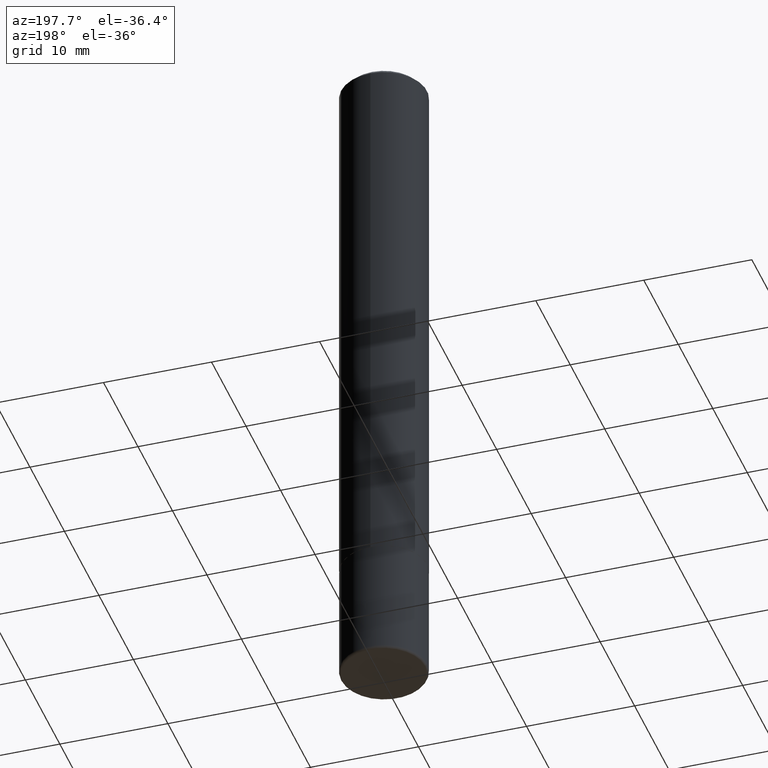
[diagram: clean part render]
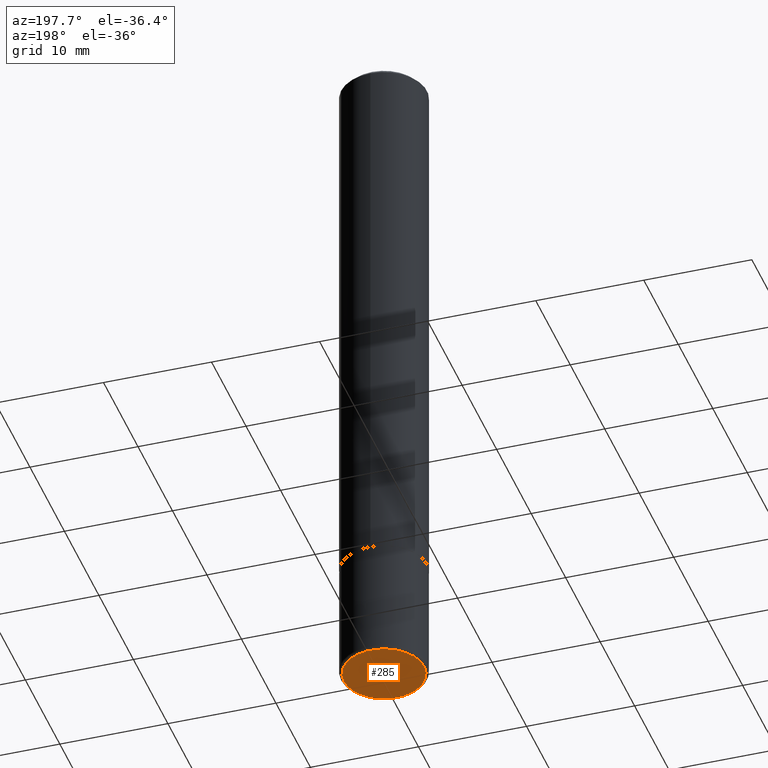
[diagram: same view with one face highlighted and labeled with its STEP entity id]
A machine part, auxiliary view. The second image highlights one B-rep face of the part: STEP entity #285.
In plain terms, the highlighted planar face has unit normal (0, -0, -1).
Its self-contained STEP definition (entity closure, byte-faithful):
#14 = CARTESIAN_POINT ( 'NONE',  ( 0.1462500000000000189, -9.749961638719478451E-15, -2.499999999999999556 ) ) ;
#32 = AXIS2_PLACEMENT_3D ( 'NONE', #390, #261, #386 ) ;
#57 = DIRECTION ( 'NONE',  ( 2.438088387897960049E-29, -3.491481338843145188E-15, -1.000000000000000000 ) ) ;
#72 = AXIS2_PLACEMENT_3D ( 'NONE', #198, #299, #96 ) ;
#89 = FACE_OUTER_BOUND ( 'NONE', #365, .T. ) ;
#96 = DIRECTION ( 'NONE',  ( 1.000000000000000000, -6.982962677686264344E-15, 0.000000000000000000 ) ) ;
#113 = ORIENTED_EDGE ( 'NONE', *, *, #170, .F. ) ;
#160 = CARTESIAN_POINT ( 'NONE',  ( 1.263551563285417854E-28, 6.109479132827826125E-16, -2.500000000000000000 ) ) ;
#163 = PLANE ( 'NONE',  #225 ) ;
#164 = CARTESIAN_POINT ( 'NONE',  ( -0.1462500000000000189, -7.636550052576496041E-15, -2.499999999999999556 ) ) ;
#170 = EDGE_CURVE ( 'NONE', #373, #269, #277, .T. ) ;
#184 = ORIENTED_EDGE ( 'NONE', *, *, #401, .F. ) ;
#198 = CARTESIAN_POINT ( 'NONE',  ( 6.113672015462840371E-29, -8.728703347107863365E-15, -2.499999999999999556 ) ) ;
#225 = AXIS2_PLACEMENT_3D ( 'NONE', #160, #57, #349 ) ;
#261 = DIRECTION ( 'NONE',  ( -2.445468806185136597E-29, 3.491481338843145583E-15, 1.000000000000000000 ) ) ;
#269 = VERTEX_POINT ( 'NONE', #14 ) ;
#277 = CIRCLE ( 'NONE', #72, 0.1462500000000000189 ) ;
#285 = ADVANCED_FACE ( 'NONE', ( #89 ), #163, .T. ) ;
#299 = DIRECTION ( 'NONE',  ( -2.445468806185136597E-29, 3.491481338843145583E-15, 1.000000000000000000 ) ) ;
#316 = CIRCLE ( 'NONE', #32, 0.1462500000000000189 ) ;
#349 = DIRECTION ( 'NONE',  ( -1.000000000000000000, 6.982962677686265922E-15, -4.876176775795935793E-29 ) ) ;
#365 = EDGE_LOOP ( 'NONE', ( #184, #113 ) ) ;
#373 = VERTEX_POINT ( 'NONE', #164 ) ;
#386 = DIRECTION ( 'NONE',  ( 1.000000000000000000, -6.982962677686264344E-15, 0.000000000000000000 ) ) ;
#390 = CARTESIAN_POINT ( 'NONE',  ( 6.113672015462840371E-29, -8.728703347107863365E-15, -2.499999999999999556 ) ) ;
#401 = EDGE_CURVE ( 'NONE', #269, #373, #316, .T. ) ;